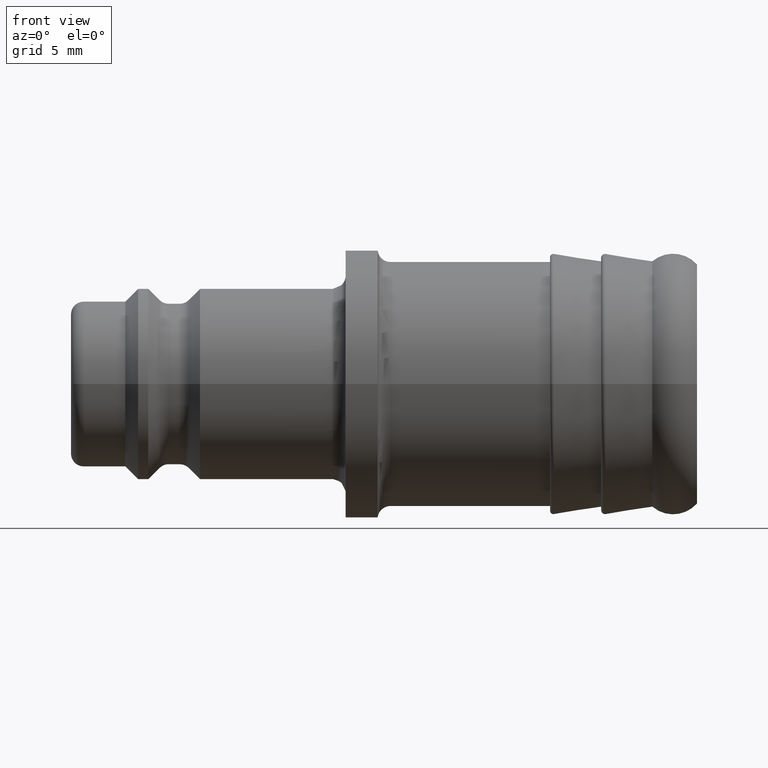
[diagram: clean part render]
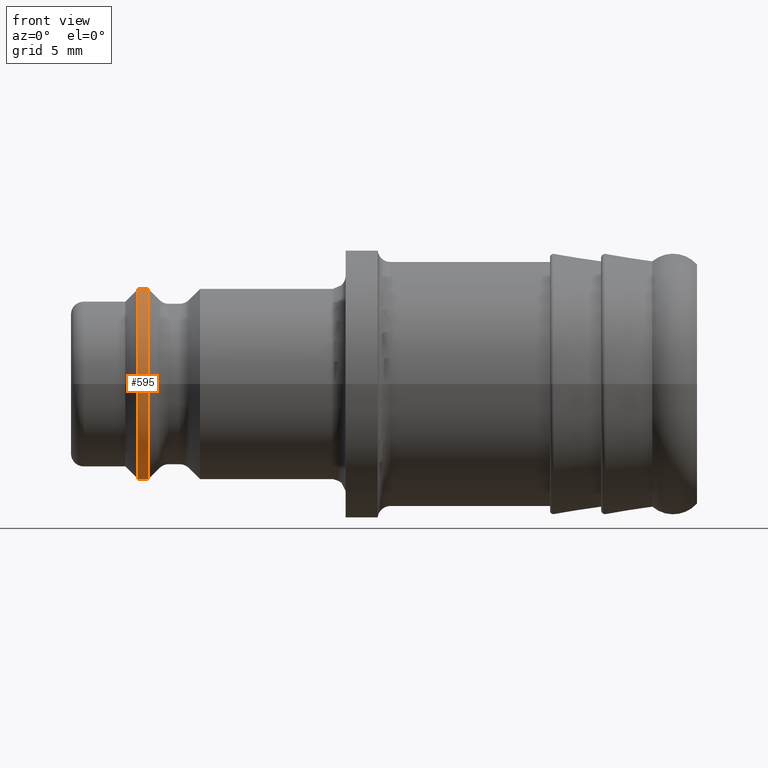
[diagram: same view with one face highlighted and labeled with its STEP entity id]
A machine part, front view. The second image highlights one B-rep face of the part: STEP entity #595.
In plain terms, the highlighted cylindrical surface (bore or boss wall) has radius 7.5 mm, axis along (-1, 0, 0).
Its self-contained STEP definition (entity closure, byte-faithful):
#269=CARTESIAN_POINT('',(6.05,-7.5,0.0));
#270=VERTEX_POINT('',#269);
#271=CARTESIAN_POINT('',(6.05,0.0,0.0));
#272=DIRECTION('',(-1.0,0.0,0.0));
#273=DIRECTION('',(0.0,-1.0,0.0));
#274=AXIS2_PLACEMENT_3D('',#271,#272,#273);
#275=CIRCLE('',#274,7.5);
#276=EDGE_CURVE('',#270,#270,#275,.T.);
#576=CARTESIAN_POINT('',(5.650000000000002,0.0,0.0));
#577=DIRECTION('',(-1.0,0.0,0.0));
#578=DIRECTION('',(0.0,-1.0,0.0));
#579=AXIS2_PLACEMENT_3D('',#576,#577,#578);
#580=CYLINDRICAL_SURFACE('',#579,7.5);
#581=CARTESIAN_POINT('',(5.250000000000003,-7.5,0.0));
#582=VERTEX_POINT('',#581);
#583=CARTESIAN_POINT('',(5.250000000000003,0.0,0.0));
#584=DIRECTION('',(-1.0,0.0,0.0));
#585=DIRECTION('',(0.0,-1.0,0.0));
#586=AXIS2_PLACEMENT_3D('',#583,#584,#585);
#587=CIRCLE('',#586,7.5);
#588=EDGE_CURVE('',#582,#582,#587,.T.);
#589=ORIENTED_EDGE('',*,*,#588,.F.);
#590=EDGE_LOOP('',(#589));
#591=FACE_OUTER_BOUND('',#590,.T.);
#592=ORIENTED_EDGE('',*,*,#276,.T.);
#593=EDGE_LOOP('',(#592));
#594=FACE_BOUND('',#593,.T.);
#595=ADVANCED_FACE('',(#591,#594),#580,.T.);